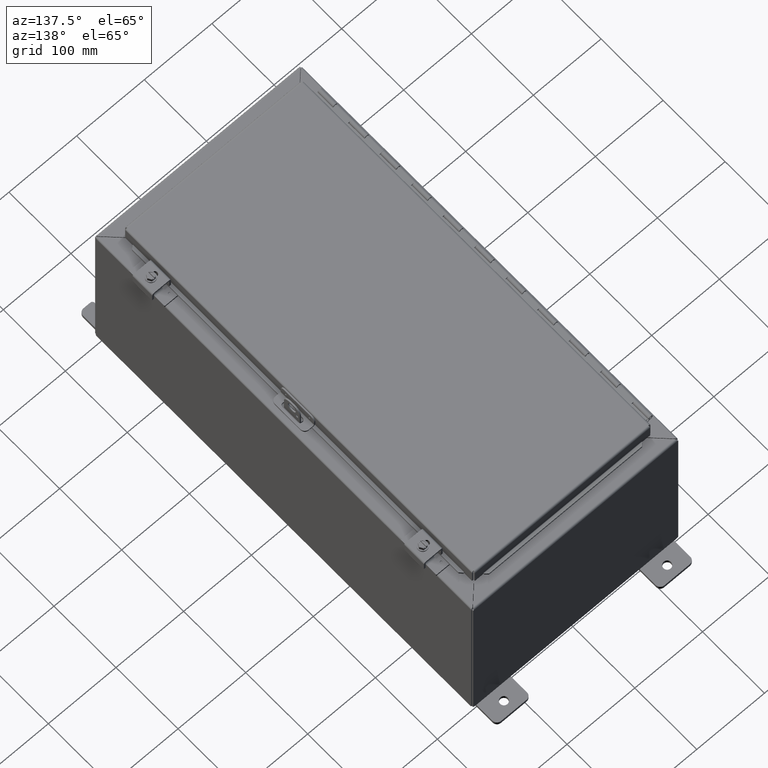
[diagram: clean part render]
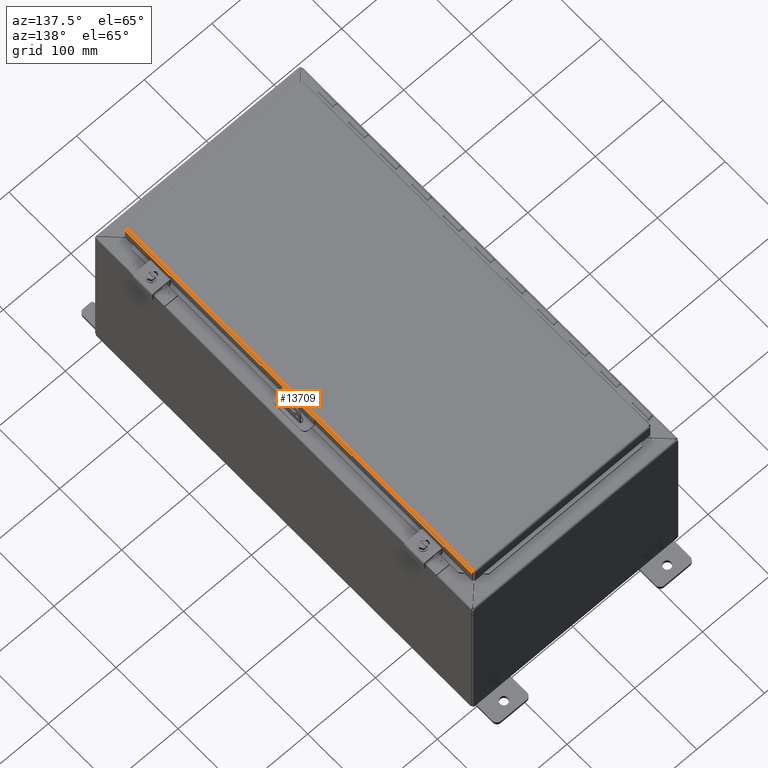
[diagram: same view with one face highlighted and labeled with its STEP entity id]
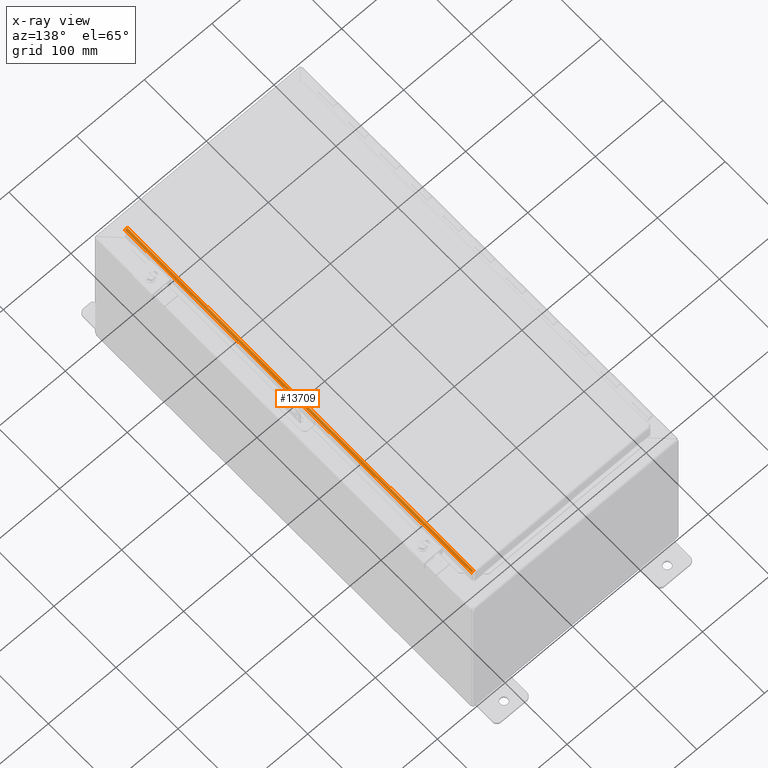
[diagram: x-ray of the same camera — body ghosted, the highlighted face saturated]
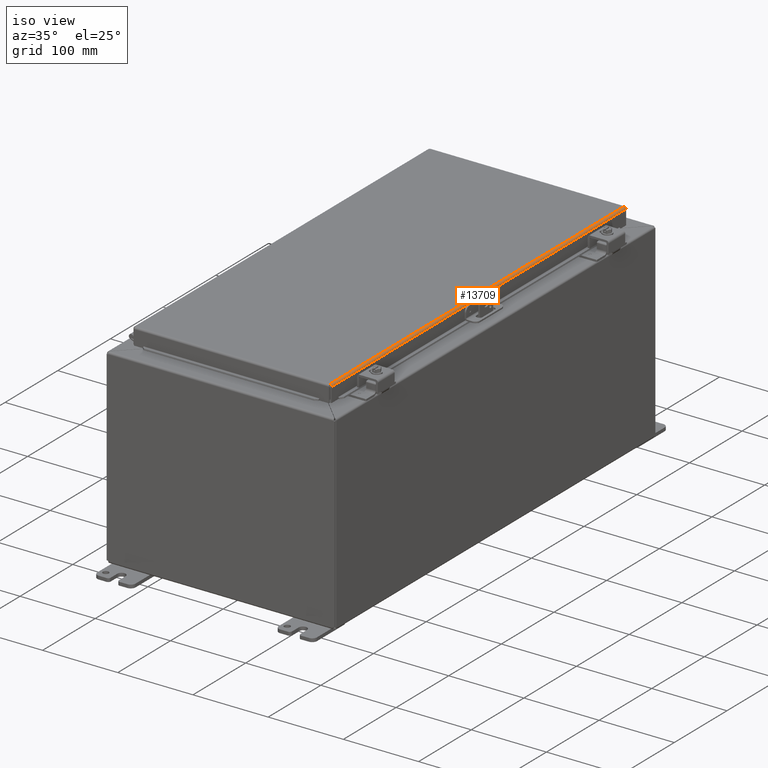
[diagram: same view with one face highlighted and labeled with its STEP entity id]
A machine part, auxiliary view. The second image highlights one B-rep face of the part: STEP entity #13709.
The next image is the same camera in x-ray: the body ghosted, the highlighted face saturated — about 0% of this face is hidden behind the body in this view.
A second angle (iso view) of the same face is appended — the face is thin or edge-on in the first view.
In plain terms, the highlighted cylindrical surface (edge-blend (fillet) strip) has radius 2.6734 mm, axis along (-0, 1, -0).
Its self-contained STEP definition (entity closure, byte-faithful):
#12449=CARTESIAN_POINT('',(5.187500000000002,-11.008701456543958,0.105250000000001));
#12450=VERTEX_POINT('',#12449);
#12457=CARTESIAN_POINT('',(5.1875,11.008701456543962,0.105250000000001));
#12458=VERTEX_POINT('',#12457);
#12459=CARTESIAN_POINT('',(5.187500000000002,-11.008701456543958,0.105250000000002));
#12460=DIRECTION('',(0.0,1.0,0.0));
#12461=VECTOR('',#12460,22.017402913087921);
#12462=LINE('',#12459,#12461);
#12463=EDGE_CURVE('',#12450,#12458,#12462,.T.);
#12997=CARTESIAN_POINT('',(5.184174695377485,-11.005460056833419,0.079002734005098));
#12998=VERTEX_POINT('',#12997);
#13014=CARTESIAN_POINT('',(5.184121459497144,-11.005460056833419,0.078988804413154));
#13015=CARTESIAN_POINT('',(5.186342546355803,-11.006540523403599,0.087561058830297));
#13016=CARTESIAN_POINT('',(5.187500000000002,-11.007620989973779,0.096407590324945));
#13017=CARTESIAN_POINT('',(5.187500000000002,-11.008701456543958,0.105250000000001));
#13018=B_SPLINE_CURVE_WITH_KNOTS('',3,(#13014,#13015,#13016,#13017),.UNSPECIFIED.,.F.,.U.,(4,4),(1.318756146033212,1.570796326794899),.UNSPECIFIED.);
#13019=EDGE_CURVE('',#12998,#12450,#13018,.T.);
#13057=CARTESIAN_POINT('',(5.082250000000002,-10.988499999999998,-2.185478E-017));
#13058=VERTEX_POINT('',#13057);
#13278=CARTESIAN_POINT('',(5.08225,10.988500000000002,-3.278218E-017));
#13279=VERTEX_POINT('',#13278);
#13408=CARTESIAN_POINT('',(5.184174695377484,11.005460056833423,0.079002734005099));
#13409=VERTEX_POINT('',#13408);
#13423=CARTESIAN_POINT('',(5.184174695377485,11.005460056833423,0.079002734005101));
#13424=CARTESIAN_POINT('',(5.177581601406563,11.002229569817533,0.053400101917174));
#13425=CARTESIAN_POINT('',(5.160895920664119,10.998999082801646,0.030548993129992));
#13426=CARTESIAN_POINT('',(5.138625496024952,10.995768595785755,0.016376669269492));
#13427=CARTESIAN_POINT('',(5.121922677545574,10.993345730523838,0.005747426374116));
#13428=CARTESIAN_POINT('',(5.102078440624288,10.990922865261918,4.370957E-016));
#13429=CARTESIAN_POINT('',(5.08225,10.988500000000002,4.370957E-016));
#13430=B_SPLINE_CURVE_WITH_KNOTS('',3,(#13423,#13424,#13425,#13426,#13427,#13428,#13429),.UNSPECIFIED.,.F.,.U.,(4,3,4),(0.252040180761653,1.005615121352032,1.570796326794899),.UNSPECIFIED.);
#13431=EDGE_CURVE('',#13409,#13279,#13430,.T.);
#13676=CARTESIAN_POINT('',(5.082250000000001,0.0,0.10525));
#13677=DIRECTION('',(6.304028E-017,-1.0,0.0));
#13678=DIRECTION('',(0.0,0.0,-1.0));
#13679=AXIS2_PLACEMENT_3D('',#13676,#13677,#13678);
#13680=CYLINDRICAL_SURFACE('',#13679,0.10525);
#13681=ORIENTED_EDGE('',*,*,#12463,.F.);
#13682=ORIENTED_EDGE('',*,*,#13019,.F.);
#13683=CARTESIAN_POINT('',(5.082250000000002,-10.9885,4.370957E-016));
#13684=CARTESIAN_POINT('',(5.102078440624289,-10.990922865261917,4.527062E-016));
#13685=CARTESIAN_POINT('',(5.121922677545574,-10.993345730523835,0.005747426374115));
#13686=CARTESIAN_POINT('',(5.138625496024951,-10.995768595785751,0.016376669269491));
#13687=CARTESIAN_POINT('',(5.160895920664118,-10.998999082801642,0.030548993129989));
#13688=CARTESIAN_POINT('',(5.177581601406562,-11.00222956981753,0.05340010191717));
#13689=CARTESIAN_POINT('',(5.184174695377485,-11.005460056833419,0.079002734005096));
#13690=B_SPLINE_CURVE_WITH_KNOTS('',3,(#13683,#13684,#13685,#13686,#13687,#13688,#13689),.UNSPECIFIED.,.F.,.U.,(4,3,4),(0.0,0.565181205442855,1.318756146033212),.UNSPECIFIED.);
#13691=EDGE_CURVE('',#13058,#12998,#13690,.T.);
#13692=ORIENTED_EDGE('',*,*,#13691,.F.);
#13693=CARTESIAN_POINT('',(5.08225,10.988500000000002,0.0));
#13694=DIRECTION('',(0.0,-1.0,0.0));
#13695=VECTOR('',#13694,21.977000000000004);
#13696=LINE('',#13693,#13695);
#13697=EDGE_CURVE('',#13279,#13058,#13696,.T.);
#13698=ORIENTED_EDGE('',*,*,#13697,.F.);
#13699=ORIENTED_EDGE('',*,*,#13431,.F.);
#13700=CARTESIAN_POINT('',(5.1875,11.008701456543962,0.105250000000001));
#13701=CARTESIAN_POINT('',(5.1875,11.007620989973782,0.096407590324946));
#13702=CARTESIAN_POINT('',(5.186342546355802,11.006540523403602,0.087561058830299));
#13703=CARTESIAN_POINT('',(5.184121459497144,11.005460056833423,0.078988804413158));
#13704=B_SPLINE_CURVE_WITH_KNOTS('',3,(#13700,#13701,#13702,#13703),.UNSPECIFIED.,.F.,.U.,(4,4),(0.0,0.252040180761653),.UNSPECIFIED.);
#13705=EDGE_CURVE('',#12458,#13409,#13704,.T.);
#13706=ORIENTED_EDGE('',*,*,#13705,.F.);
#13707=EDGE_LOOP('',(#13681,#13682,#13692,#13698,#13699,#13706));
#13708=FACE_OUTER_BOUND('',#13707,.T.);
#13709=ADVANCED_FACE('',(#13708),#13680,.T.);